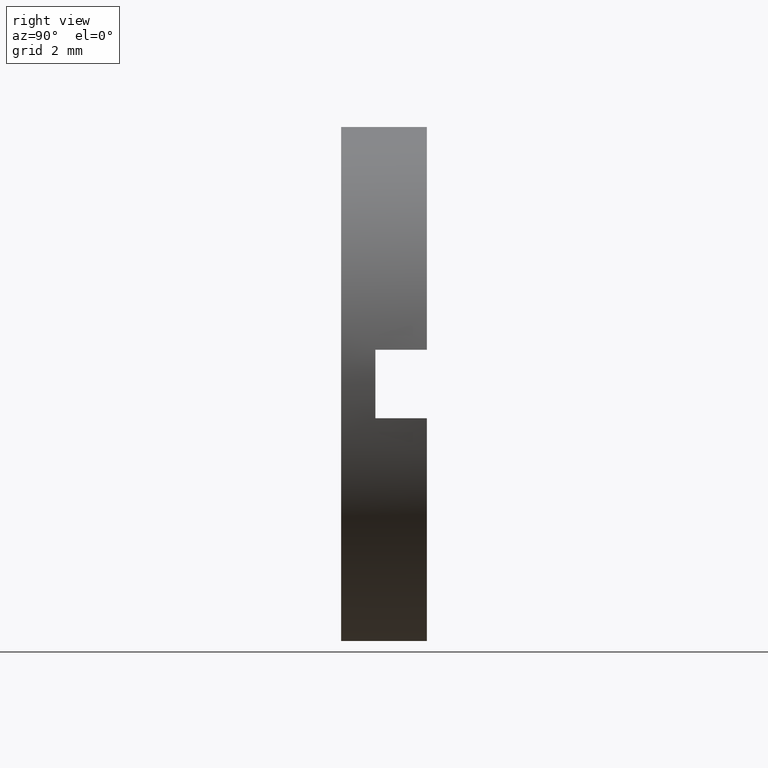
[diagram: clean part render]
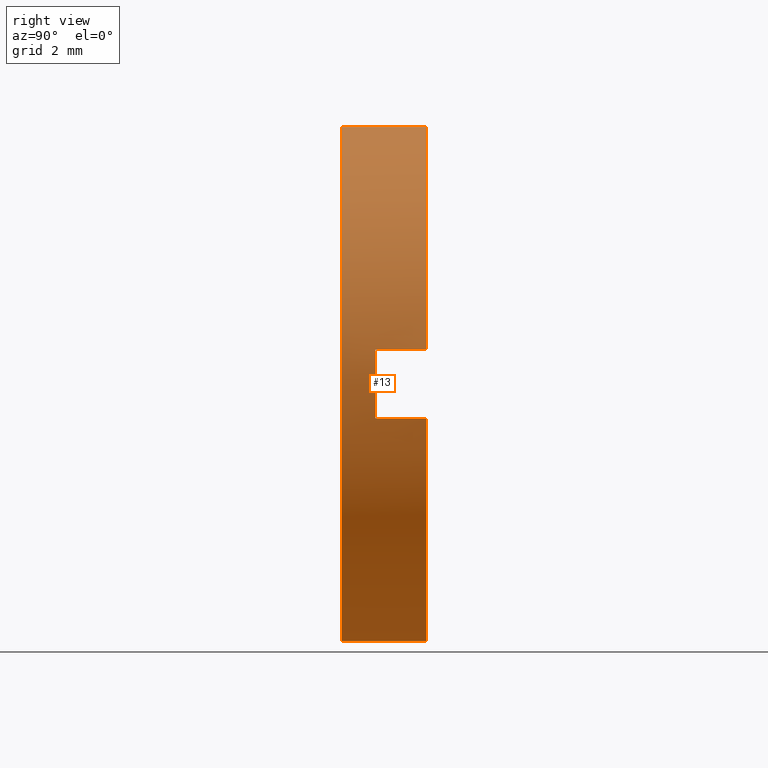
[diagram: same view with one face highlighted and labeled with its STEP entity id]
A machine part, right view. The second image highlights one B-rep face of the part: STEP entity #13.
In plain terms, the highlighted cylindrical surface (partial cylindrical patch) has radius 7.5 mm, axis along (-0, 1, -0).
Its self-contained STEP definition (entity closure, byte-faithful):
#1 = CARTESIAN_POINT ( 'NONE',  ( 7.433034373659259200, 56.26084262701361600, 1.000000000000000000 ) ) ;
#2 = VERTEX_POINT ( 'NONE', #114 ) ;
#6 = AXIS2_PLACEMENT_3D ( 'NONE', #446, #85, #314 ) ;
#7 = CARTESIAN_POINT ( 'NONE',  ( 0.0000000000000000000, -1.964249787179434000, 7.500000000000007100 ) ) ;
#10 = EDGE_CURVE ( 'NONE', #89, #326, #40, .T. ) ;
#13 = ADVANCED_FACE ( 'NONE', ( #442 ), #574, .T. ) ;
#17 = ORIENTED_EDGE ( 'NONE', *, *, #348, .F. ) ;
#20 = CARTESIAN_POINT ( 'NONE',  ( 7.433034373659258300, -3.464249787179428400, -0.9999999999999995600 ) ) ;
#21 = CARTESIAN_POINT ( 'NONE',  ( 7.433034373659247700, -1.964249787179430900, -1.000000000000000000 ) ) ;
#22 = CARTESIAN_POINT ( 'NONE',  ( 7.433034373659258300, -3.464249787179428400, 0.9999999999999995600 ) ) ;
#25 = DIRECTION ( 'NONE',  ( -0.0000000000000000000, 1.000000000000000000, -0.0000000000000000000 ) ) ;
#31 = EDGE_CURVE ( 'NONE', #481, #2, #159, .T. ) ;
#40 = LINE ( 'NONE', #259, #414 ) ;
#54 = ORIENTED_EDGE ( 'NONE', *, *, #453, .T. ) ;
#62 = VERTEX_POINT ( 'NONE', #22 ) ;
#72 = EDGE_CURVE ( 'NONE', #326, #416, #327, .T. ) ;
#85 = DIRECTION ( 'NONE',  ( -0.0000000000000000000, 1.000000000000000000, -0.0000000000000000000 ) ) ;
#88 = CIRCLE ( 'NONE', #196, 7.500000000000007100 ) ;
#89 = VERTEX_POINT ( 'NONE', #479 ) ;
#90 = LINE ( 'NONE', #1, #213 ) ;
#99 = CARTESIAN_POINT ( 'NONE',  ( 7.433034373659247700, -1.964249787179430900, 1.000000000000000000 ) ) ;
#111 = EDGE_LOOP ( 'NONE', ( #253, #588, #148, #54, #17, #232, #586, #240 ) ) ;
#114 = CARTESIAN_POINT ( 'NONE',  ( 9.184850993605157800E-016, -1.964249787179434000, -7.500000000000007100 ) ) ;
#121 = VECTOR ( 'NONE', #512, 1000.000000000000000 ) ;
#126 = DIRECTION ( 'NONE',  ( -0.0000000000000000000, 1.000000000000000000, -0.0000000000000000000 ) ) ;
#143 = CARTESIAN_POINT ( 'NONE',  ( 0.0000000000000000000, -3.464249787179428400, 0.0000000000000000000 ) ) ;
#148 = ORIENTED_EDGE ( 'NONE', *, *, #31, .F. ) ;
#157 = CARTESIAN_POINT ( 'NONE',  ( 9.184850993605157800E-016, -4.464249787179428900, -7.500000000000007100 ) ) ;
#159 = CIRCLE ( 'NONE', #424, 7.500000000000007100 ) ;
#161 = CARTESIAN_POINT ( 'NONE',  ( 0.0000000000000000000, -1.964249787179434000, 0.0000000000000000000 ) ) ;
#163 = LINE ( 'NONE', #470, #229 ) ;
#189 = DIRECTION ( 'NONE',  ( -0.0000000000000000000, 1.000000000000000000, -0.0000000000000000000 ) ) ;
#196 = AXIS2_PLACEMENT_3D ( 'NONE', #289, #235, #553 ) ;
#209 = DIRECTION ( 'NONE',  ( -0.0000000000000000000, 1.000000000000000000, -0.0000000000000000000 ) ) ;
#213 = VECTOR ( 'NONE', #189, 1000.000000000000000 ) ;
#229 = VECTOR ( 'NONE', #251, 1000.000000000000000 ) ;
#232 = ORIENTED_EDGE ( 'NONE', *, *, #274, .T. ) ;
#235 = DIRECTION ( 'NONE',  ( -0.0000000000000000000, 1.000000000000000000, -0.0000000000000000000 ) ) ;
#240 = ORIENTED_EDGE ( 'NONE', *, *, #10, .F. ) ;
#250 = DIRECTION ( 'NONE',  ( 0.0000000000000000000, 0.0000000000000000000, 1.000000000000000000 ) ) ;
#251 = DIRECTION ( 'NONE',  ( 0.0000000000000000000, -1.000000000000000000, 0.0000000000000000000 ) ) ;
#253 = ORIENTED_EDGE ( 'NONE', *, *, #312, .T. ) ;
#257 = DIRECTION ( 'NONE',  ( 0.0000000000000000000, 0.0000000000000000000, 1.000000000000000000 ) ) ;
#259 = CARTESIAN_POINT ( 'NONE',  ( 0.0000000000000000000, 56.26084262701361600, 7.500000000000007100 ) ) ;
#274 = EDGE_CURVE ( 'NONE', #62, #416, #90, .T. ) ;
#289 = CARTESIAN_POINT ( 'NONE',  ( 0.0000000000000000000, -4.464249787179428900, 0.0000000000000000000 ) ) ;
#298 = AXIS2_PLACEMENT_3D ( 'NONE', #143, #464, #418 ) ;
#308 = AXIS2_PLACEMENT_3D ( 'NONE', #569, #209, #257 ) ;
#310 = CIRCLE ( 'NONE', #298, 7.500000000000007100 ) ;
#312 = EDGE_CURVE ( 'NONE', #89, #427, #88, .T. ) ;
#314 = DIRECTION ( 'NONE',  ( 0.0000000000000000000, 0.0000000000000000000, 1.000000000000000000 ) ) ;
#326 = VERTEX_POINT ( 'NONE', #7 ) ;
#327 = CIRCLE ( 'NONE', #6, 7.500000000000007100 ) ;
#339 = LINE ( 'NONE', #425, #121 ) ;
#348 = EDGE_CURVE ( 'NONE', #62, #510, #310, .T. ) ;
#414 = VECTOR ( 'NONE', #126, 1000.000000000000000 ) ;
#416 = VERTEX_POINT ( 'NONE', #99 ) ;
#418 = DIRECTION ( 'NONE',  ( 0.0000000000000000000, 0.0000000000000000000, 1.000000000000000000 ) ) ;
#424 = AXIS2_PLACEMENT_3D ( 'NONE', #161, #25, #250 ) ;
#425 = CARTESIAN_POINT ( 'NONE',  ( 9.184850993605157800E-016, 56.26084262701361600, -7.500000000000007100 ) ) ;
#427 = VERTEX_POINT ( 'NONE', #157 ) ;
#442 = FACE_OUTER_BOUND ( 'NONE', #111, .T. ) ;
#446 = CARTESIAN_POINT ( 'NONE',  ( 0.0000000000000000000, -1.964249787179434000, 0.0000000000000000000 ) ) ;
#453 = EDGE_CURVE ( 'NONE', #481, #510, #163, .T. ) ;
#464 = DIRECTION ( 'NONE',  ( 0.0000000000000000000, 1.000000000000000000, 0.0000000000000000000 ) ) ;
#470 = CARTESIAN_POINT ( 'NONE',  ( 7.433034373659259200, 56.26084262701361600, -1.000000000000000000 ) ) ;
#479 = CARTESIAN_POINT ( 'NONE',  ( 0.0000000000000000000, -4.464249787179428900, 7.500000000000007100 ) ) ;
#481 = VERTEX_POINT ( 'NONE', #21 ) ;
#510 = VERTEX_POINT ( 'NONE', #20 ) ;
#512 = DIRECTION ( 'NONE',  ( -0.0000000000000000000, 1.000000000000000000, -0.0000000000000000000 ) ) ;
#544 = EDGE_CURVE ( 'NONE', #427, #2, #339, .T. ) ;
#553 = DIRECTION ( 'NONE',  ( 0.0000000000000000000, 0.0000000000000000000, 1.000000000000000000 ) ) ;
#569 = CARTESIAN_POINT ( 'NONE',  ( 0.0000000000000000000, 56.26084262701361600, 0.0000000000000000000 ) ) ;
#574 = CYLINDRICAL_SURFACE ( 'NONE', #308, 7.500000000000007100 ) ;
#586 = ORIENTED_EDGE ( 'NONE', *, *, #72, .F. ) ;
#588 = ORIENTED_EDGE ( 'NONE', *, *, #544, .T. ) ;